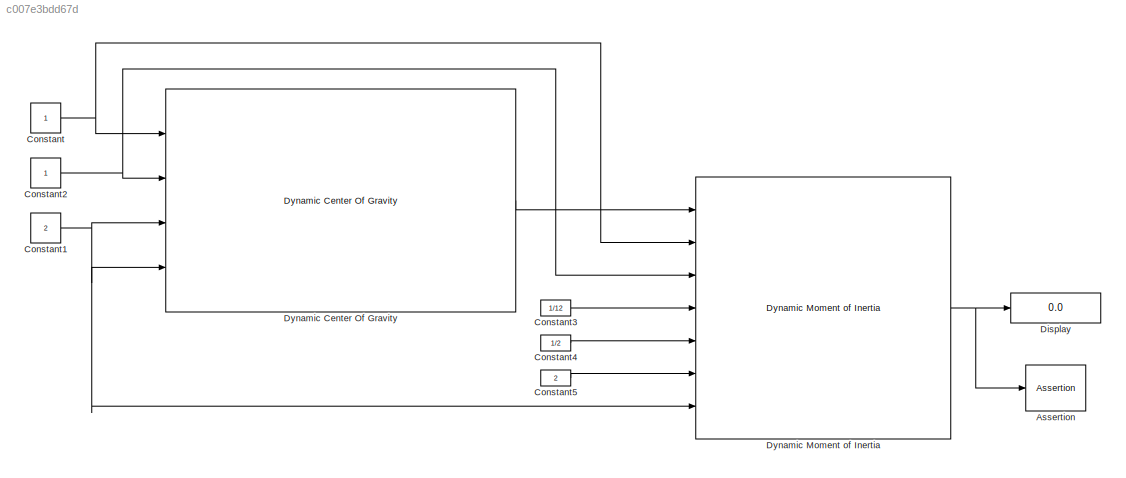
MODEL slx_c007e3bdd67d
KIND model
BLOCK [Assertion] Assertion
BLOCK [Constant] Constant
BLOCK [Constant] Constant1
  Value = 2
BLOCK [Constant] Constant2
BLOCK [Constant] Constant3
  Value = 1/12
BLOCK [Constant] Constant4
  Value = 1/2
BLOCK [Constant] Constant5
  Value = 2
BLOCK [Display] Display
  Decimation = 1
  Ports = [1]
BLOCK [Reference] Dynamic Center Of Gravity  REF=rocket_dynamic_data_library/Dynamic Center Of Gravity  (lib defined in slx_58be5b8ac4f4)
  Ports = [4, 1]
  SourceBlock = rocket_dynamic_data_library/Dynamic Center Of Gravity
  SourceType = SubSystem
BLOCK [Reference] Dynamic Moment of Inertia  REF=rocket_dynamic_data_library/Dynamic Moment of Inertia  (lib defined in slx_58be5b8ac4f4)
  Ports = [7, 1]
  SourceBlock = rocket_dynamic_data_library/Dynamic Moment of Inertia
  SourceType = SubSystem
NET Constant1:1 -> Dynamic Center Of Gravity:3, Dynamic Center Of Gravity:4, Dynamic Moment of Inertia:7
NET Constant2:1 -> Dynamic Center Of Gravity:2, Dynamic Moment of Inertia:3
LINE Constant3:1 -> Dynamic Moment of Inertia:4
LINE Constant4:1 -> Dynamic Moment of Inertia:5
LINE Constant5:1 -> Dynamic Moment of Inertia:6
NET Constant:1 -> Dynamic Center Of Gravity:1, Dynamic Moment of Inertia:2
LINE Dynamic Center Of Gravity:1 -> Dynamic Moment of Inertia:1
NET Dynamic Moment of Inertia:1 -> Assertion:1, Display:1
note: NET lines group one-source signal fan-out (src -> all destinations, sorted); 1:1 wires keep LINE
